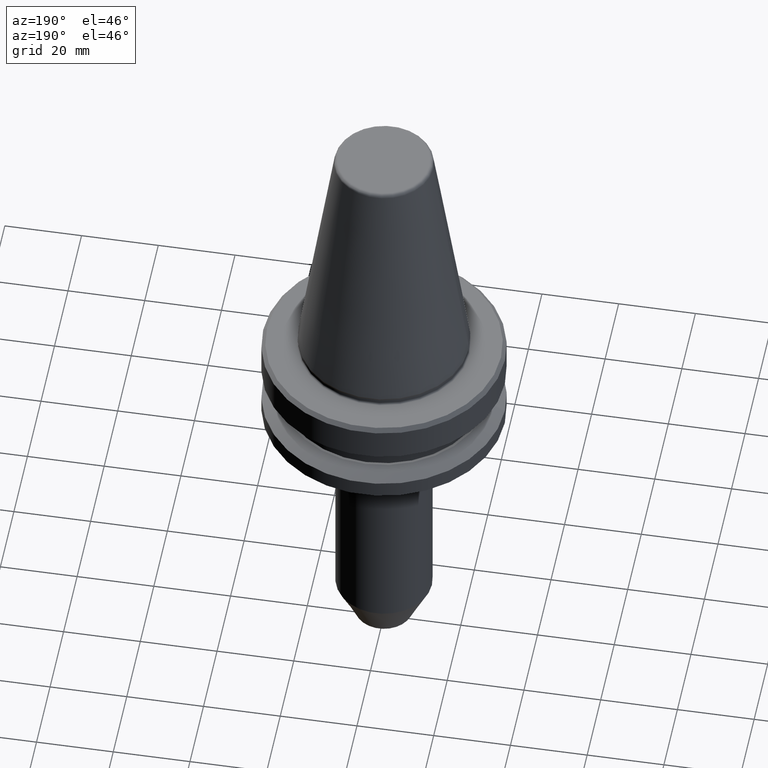
[diagram: clean part render]
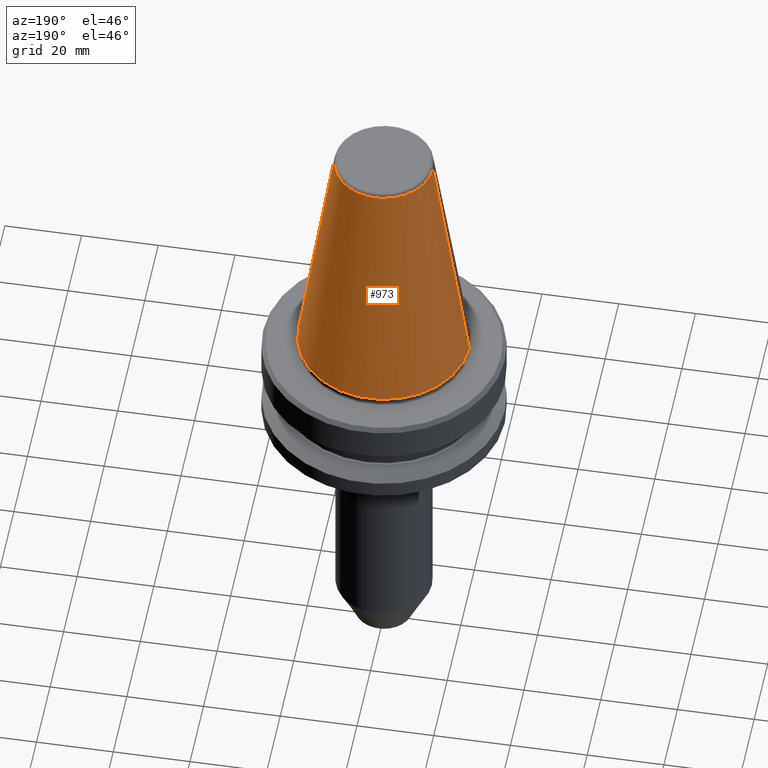
[diagram: same view with one face highlighted and labeled with its STEP entity id]
A machine part, auxiliary view. The second image highlights one B-rep face of the part: STEP entity #973.
In plain terms, the highlighted conical surface has half-angle 8.297 deg.
Its self-contained STEP definition (entity closure, byte-faithful):
#13 = LINE ( 'NONE', #495, #14 ) ;
#14 = VECTOR ( 'NONE', #925, 1000.000000000000000 ) ;
#34 = ORIENTED_EDGE ( 'NONE', *, *, #185, .F. ) ;
#35 = DIRECTION ( 'NONE',  ( 0.0000000000000000000, 0.0000000000000000000, -1.000000000000000000 ) ) ;
#94 = ORIENTED_EDGE ( 'NONE', *, *, #115, .T. ) ;
#115 = EDGE_CURVE ( 'NONE', #974, #854, #13, .T. ) ;
#150 = EDGE_CURVE ( 'NONE', #854, #971, #683, .T. ) ;
#180 = AXIS2_PLACEMENT_3D ( 'NONE', #700, #844, #487 ) ;
#185 = EDGE_CURVE ( 'NONE', #449, #971, #283, .T. ) ;
#190 = DIRECTION ( 'NONE',  ( -0.0000000000000000000, -0.0000000000000000000, 1.000000000000000000 ) ) ;
#244 = CARTESIAN_POINT ( 'NONE',  ( 12.81220206925746700, 0.0000000000000000000, 64.54430818888812400 ) ) ;
#283 = LINE ( 'NONE', #468, #708 ) ;
#288 = DIRECTION ( 'NONE',  ( -0.1443081888881845600, 0.0000000000000000000, -0.9895327920891818800 ) ) ;
#390 = CARTESIAN_POINT ( 'NONE',  ( 0.0000000000000000000, 0.0000000000000000000, 5.551115123125782700E-013 ) ) ;
#449 = VERTEX_POINT ( 'NONE', #697 ) ;
#468 = CARTESIAN_POINT ( 'NONE',  ( -22.22500000000038500, 0.0000000000000000000, 5.551115123125782700E-013 ) ) ;
#483 = EDGE_LOOP ( 'NONE', ( #930, #94, #845, #34 ) ) ;
#487 = DIRECTION ( 'NONE',  ( 1.000000000000000000, 0.0000000000000000000, 0.0000000000000000000 ) ) ;
#495 = CARTESIAN_POINT ( 'NONE',  ( 22.22500000000038500, 2.721777511105039400E-015, 5.551115123125782700E-013 ) ) ;
#507 = DIRECTION ( 'NONE',  ( 1.000000000000000000, 0.0000000000000000000, 0.0000000000000000000 ) ) ;
#598 = CARTESIAN_POINT ( 'NONE',  ( 0.0000000000000000000, 0.0000000000000000000, 5.551115123125782700E-013 ) ) ;
#622 = CARTESIAN_POINT ( 'NONE',  ( -22.22500000000038500, 2.721777511105039400E-015, 5.551115123125782700E-013 ) ) ;
#683 = CIRCLE ( 'NONE', #835, 22.22500000000038500 ) ;
#697 = CARTESIAN_POINT ( 'NONE',  ( -12.81220206925746700, 1.569042225414524900E-015, 64.54430818888812400 ) ) ;
#700 = CARTESIAN_POINT ( 'NONE',  ( 0.0000000000000000000, 0.0000000000000000000, 64.54430818888812400 ) ) ;
#708 = VECTOR ( 'NONE', #288, 1000.000000000000000 ) ;
#725 = FACE_OUTER_BOUND ( 'NONE', #483, .T. ) ;
#728 = AXIS2_PLACEMENT_3D ( 'NONE', #390, #35, #993 ) ;
#752 = CARTESIAN_POINT ( 'NONE',  ( 22.22500000000038500, 0.0000000000000000000, 5.551115123125782700E-013 ) ) ;
#800 = EDGE_CURVE ( 'NONE', #974, #449, #986, .T. ) ;
#808 = CONICAL_SURFACE ( 'NONE', #728, 22.22500000000038500, 0.1448138077623248600 ) ;
#835 = AXIS2_PLACEMENT_3D ( 'NONE', #598, #190, #507 ) ;
#844 = DIRECTION ( 'NONE',  ( -0.0000000000000000000, -0.0000000000000000000, 1.000000000000000000 ) ) ;
#845 = ORIENTED_EDGE ( 'NONE', *, *, #150, .T. ) ;
#854 = VERTEX_POINT ( 'NONE', #752 ) ;
#925 = DIRECTION ( 'NONE',  ( 0.1443081888881845600, 1.767265616126668700E-017, -0.9895327920891818800 ) ) ;
#930 = ORIENTED_EDGE ( 'NONE', *, *, #800, .F. ) ;
#971 = VERTEX_POINT ( 'NONE', #622 ) ;
#973 = ADVANCED_FACE ( 'NONE', ( #725 ), #808, .T. ) ;
#974 = VERTEX_POINT ( 'NONE', #244 ) ;
#986 = CIRCLE ( 'NONE', #180, 12.81220206925759400 ) ;
#993 = DIRECTION ( 'NONE',  ( -1.000000000000000000, 0.0000000000000000000, 0.0000000000000000000 ) ) ;